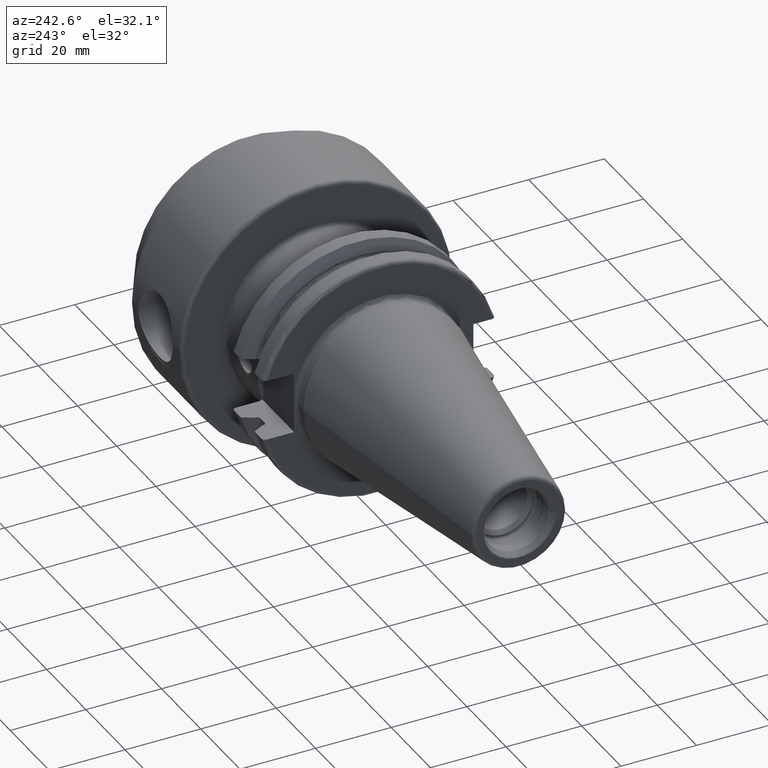
[diagram: clean part render]
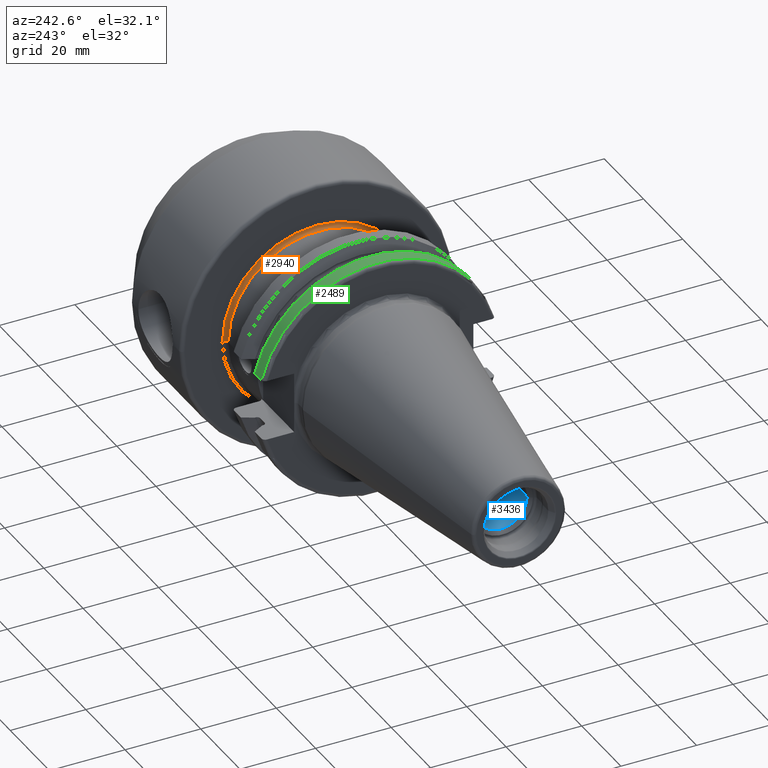
[diagram: same view with three faces highlighted in distinct colors, each labeled with its STEP entity id]
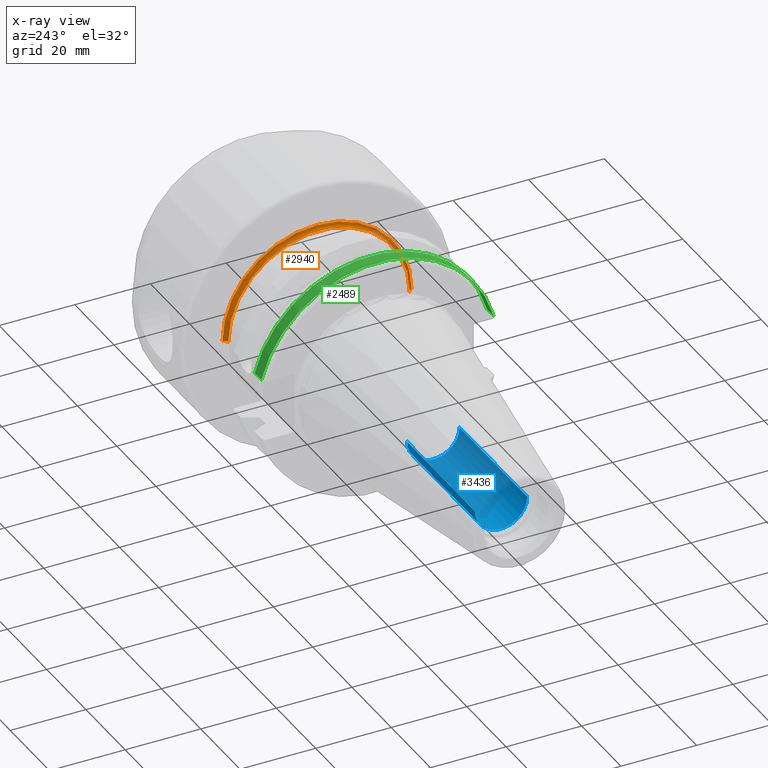
[diagram: x-ray of the same camera — body ghosted, the three highlighted faces saturated]
A machine part, auxiliary view with three faces highlighted in distinct colors.
The next image is the same camera in x-ray (body ghosted, the three faces saturated) — at least one of them is partly hidden behind the body in this view.
Their STEP definitions:

[orange] entity #2940 — the highlighted toroidal blend (fillet) surface has major radius 25 mm and minor (blend) radius 1 mm.
#164=CARTESIAN_POINT('',(3.405E1,0.E0,0.E0));
#165=DIRECTION('',(1.E0,0.E0,0.E0));
#166=DIRECTION('',(0.E0,1.E0,0.E0));
#167=AXIS2_PLACEMENT_3D('',#164,#165,#166);
#1141=CARTESIAN_POINT('',(3.405E1,-2.5E1,7.667477763817E-12));
#1142=DIRECTION('',(0.E0,-3.066999779144E-13,-1.E0));
#1143=DIRECTION('',(0.E0,1.E0,-3.066999779144E-13));
#1144=AXIS2_PLACEMENT_3D('',#1141,#1142,#1143);
#1146=CARTESIAN_POINT('',(3.405E1,2.5E1,-7.670419854833E-12));
#1147=DIRECTION('',(0.E0,3.068170717491E-13,1.E0));
#1148=DIRECTION('',(0.E0,-1.E0,3.068170717491E-13));
#1149=AXIS2_PLACEMENT_3D('',#1146,#1147,#1148);
#1156=CARTESIAN_POINT('',(3.505E1,0.E0,0.E0));
#1157=DIRECTION('',(1.E0,0.E0,0.E0));
#1158=DIRECTION('',(0.E0,1.E0,0.E0));
#1159=AXIS2_PLACEMENT_3D('',#1156,#1157,#1158);
#1825=CARTESIAN_POINT('',(3.405E1,-2.4E1,0.E0));
#1826=CARTESIAN_POINT('',(3.405E1,2.4E1,0.E0));
#1827=VERTEX_POINT('',#1825);
#1828=VERTEX_POINT('',#1826);
#1829=CARTESIAN_POINT('',(3.505E1,-2.5E1,0.E0));
#1830=CARTESIAN_POINT('',(3.505E1,2.5E1,0.E0));
#1831=VERTEX_POINT('',#1829);
#1832=VERTEX_POINT('',#1830);
#2928=CARTESIAN_POINT('',(3.405E1,0.E0,0.E0));
#2929=DIRECTION('',(1.E0,0.E0,0.E0));
#2930=DIRECTION('',(0.E0,9.999774477568E-1,-6.715949512969E-3));
#2931=AXIS2_PLACEMENT_3D('',#2928,#2929,#2930);
#2932=TOROIDAL_SURFACE('',#2931,2.5E1,1.E0);
#2933=ORIENTED_EDGE('',*,*,#2079,.F.);
#2934=ORIENTED_EDGE('',*,*,#2923,.T.);
#2936=ORIENTED_EDGE('',*,*,#2935,.T.);
#2937=ORIENTED_EDGE('',*,*,#2919,.F.);
#2938=EDGE_LOOP('',(#2933,#2934,#2936,#2937));
#2939=FACE_OUTER_BOUND('',#2938,.F.);
#2940=ADVANCED_FACE('',(#2939),#2932,.F.);
#168=CIRCLE('',#167,2.4E1);
#1145=CIRCLE('',#1144,1.E0);
#1150=CIRCLE('',#1149,1.E0);
#1160=CIRCLE('',#1159,2.5E1);
#2079=EDGE_CURVE('',#1828,#1827,#168,.T.);
#2919=EDGE_CURVE('',#1827,#1831,#1145,.T.);
#2923=EDGE_CURVE('',#1828,#1832,#1150,.T.);
#2935=EDGE_CURVE('',#1832,#1831,#1160,.T.);

[blue] entity #3436 — the highlighted cylindrical surface (edge-blend (fillet) strip) has radius 6.92 mm, axis along (1, 0, 0).
#1518=CARTESIAN_POINT('',(-5.88E1,0.E0,0.E0));
#1519=DIRECTION('',(-1.E0,0.E0,0.E0));
#1520=DIRECTION('',(0.E0,1.E0,0.E0));
#1521=AXIS2_PLACEMENT_3D('',#1518,#1519,#1520);
#1527=DIRECTION('',(-1.E0,0.E0,0.E0));
#1528=VECTOR('',#1527,3.455E1);
#1529=CARTESIAN_POINT('',(-2.425E1,6.92E0,0.E0));
#1530=LINE('',#1529,#1528);
#1531=CARTESIAN_POINT('',(-2.425E1,0.E0,0.E0));
#1532=DIRECTION('',(-1.E0,0.E0,0.E0));
#1533=DIRECTION('',(0.E0,1.E0,0.E0));
#1534=AXIS2_PLACEMENT_3D('',#1531,#1532,#1533);
#1536=DIRECTION('',(-1.E0,0.E0,0.E0));
#1537=VECTOR('',#1536,3.455E1);
#1538=CARTESIAN_POINT('',(-2.425E1,-6.92E0,0.E0));
#1539=LINE('',#1538,#1537);
#1572=CARTESIAN_POINT('',(-2.425E1,6.92E0,0.E0));
#1574=VERTEX_POINT('',#1572);
#1575=CARTESIAN_POINT('',(-5.88E1,6.92E0,0.E0));
#1576=VERTEX_POINT('',#1575);
#1595=CARTESIAN_POINT('',(-2.425E1,-6.92E0,0.E0));
#1596=VERTEX_POINT('',#1595);
#1597=CARTESIAN_POINT('',(-5.88E1,-6.92E0,0.E0));
#1598=VERTEX_POINT('',#1597);
#3422=CARTESIAN_POINT('',(-7.065789777418E1,0.E0,0.E0));
#3423=DIRECTION('',(1.E0,0.E0,0.E0));
#3424=DIRECTION('',(0.E0,-1.E0,0.E0));
#3425=AXIS2_PLACEMENT_3D('',#3422,#3423,#3424);
#3426=CYLINDRICAL_SURFACE('',#3425,6.92E0);
#3428=ORIENTED_EDGE('',*,*,#3427,.F.);
#3430=ORIENTED_EDGE('',*,*,#3429,.T.);
#3432=ORIENTED_EDGE('',*,*,#3431,.T.);
#3433=ORIENTED_EDGE('',*,*,#3415,.F.);
#3434=EDGE_LOOP('',(#3428,#3430,#3432,#3433));
#3435=FACE_OUTER_BOUND('',#3434,.F.);
#3436=ADVANCED_FACE('',(#3435),#3426,.F.);
#1522=CIRCLE('',#1521,6.92E0);
#1535=CIRCLE('',#1534,6.92E0);
#3415=EDGE_CURVE('',#1576,#1598,#1522,.T.);
#3427=EDGE_CURVE('',#1574,#1576,#1530,.T.);
#3429=EDGE_CURVE('',#1574,#1596,#1535,.T.);
#3431=EDGE_CURVE('',#1596,#1598,#1539,.T.);

[green] entity #2489 — the highlighted cylindrical surface (partial cylindrical patch) has radius 31.7625 mm, axis along (1, 0, 0).
#583=DIRECTION('',(1.E0,0.E0,0.E0));
#584=VECTOR('',#583,3.445946479578E0);
#585=CARTESIAN_POINT('',(4.2E0,3.071231684927E1,8.1E0));
#586=LINE('',#585,#584);
#587=CARTESIAN_POINT('',(7.645946479578E0,0.E0,0.E0));
#588=DIRECTION('',(1.E0,0.E0,0.E0));
#589=DIRECTION('',(0.E0,9.669363825036E-1,2.550177095632E-1));
#590=AXIS2_PLACEMENT_3D('',#587,#588,#589);
#592=DIRECTION('',(1.E0,0.E0,0.E0));
#593=VECTOR('',#592,3.445946479578E0);
#594=CARTESIAN_POINT('',(4.2E0,-3.071231684927E1,8.1E0));
#595=LINE('',#594,#593);
#614=CARTESIAN_POINT('',(7.645946479578E0,3.071231684927E1,8.1E0));
#626=CARTESIAN_POINT('',(7.645946479578E0,-3.071231684927E1,8.1E0));
#1125=CARTESIAN_POINT('',(4.2E0,0.E0,0.E0));
#1126=DIRECTION('',(1.E0,0.E0,0.E0));
#1127=DIRECTION('',(0.E0,9.669363825036E-1,2.550177095632E-1));
#1128=AXIS2_PLACEMENT_3D('',#1125,#1126,#1127);
#1679=VERTEX_POINT('',#614);
#1680=VERTEX_POINT('',#626);
#1699=CARTESIAN_POINT('',(4.2E0,3.071231684927E1,8.1E0));
#1700=VERTEX_POINT('',#1699);
#1703=CARTESIAN_POINT('',(4.2E0,-3.071231684927E1,8.1E0));
#1704=VERTEX_POINT('',#1703);
#2475=CARTESIAN_POINT('',(-7.2615E1,0.E0,0.E0));
#2476=DIRECTION('',(1.E0,0.E0,0.E0));
#2477=DIRECTION('',(0.E0,-1.E0,0.E0));
#2478=AXIS2_PLACEMENT_3D('',#2475,#2476,#2477);
#2479=CYLINDRICAL_SURFACE('',#2478,3.17625E1);
#2480=ORIENTED_EDGE('',*,*,#2060,.T.);
#2482=ORIENTED_EDGE('',*,*,#2481,.T.);
#2484=ORIENTED_EDGE('',*,*,#2483,.F.);
#2486=ORIENTED_EDGE('',*,*,#2485,.F.);
#2487=EDGE_LOOP('',(#2480,#2482,#2484,#2486));
#2488=FACE_OUTER_BOUND('',#2487,.F.);
#2489=ADVANCED_FACE('',(#2488),#2479,.T.);
#591=CIRCLE('',#590,3.17625E1);
#1129=CIRCLE('',#1128,3.17625E1);
#2060=EDGE_CURVE('',#1700,#1679,#586,.T.);
#2481=EDGE_CURVE('',#1679,#1680,#591,.T.);
#2483=EDGE_CURVE('',#1704,#1680,#595,.T.);
#2485=EDGE_CURVE('',#1700,#1704,#1129,.T.);